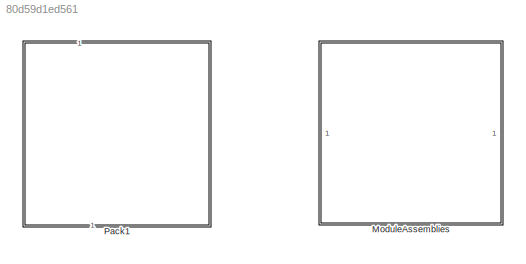
MODEL slx_80d59d1ed561
KIND library
CONFIG AbsTol = auto
CONFIG EnableMultiTasking = off
CONFIG FixedStep = auto
CONFIG MaxStep = auto
CONFIG MinStep = auto
CONFIG RelTol = 1e-3
CONFIG SampleTimeConstraint = Unconstrained
CONFIG SolverName = VariableStepAuto
CONFIG StartTime = 0.0
CONFIG StopTime = 10.0
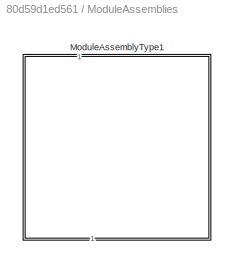
BLOCK [SubSystem] ModuleAssemblies
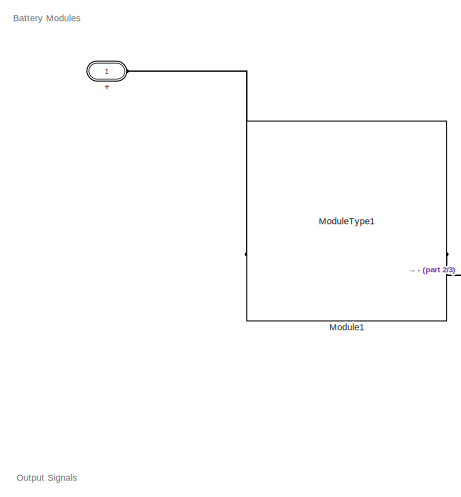
[diagram: ModuleAssemblies/ModuleAssemblyType1 - part 1/3, middle left region]
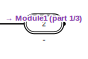
[diagram: ModuleAssemblies/ModuleAssemblyType1 - part 2/3, top right region]
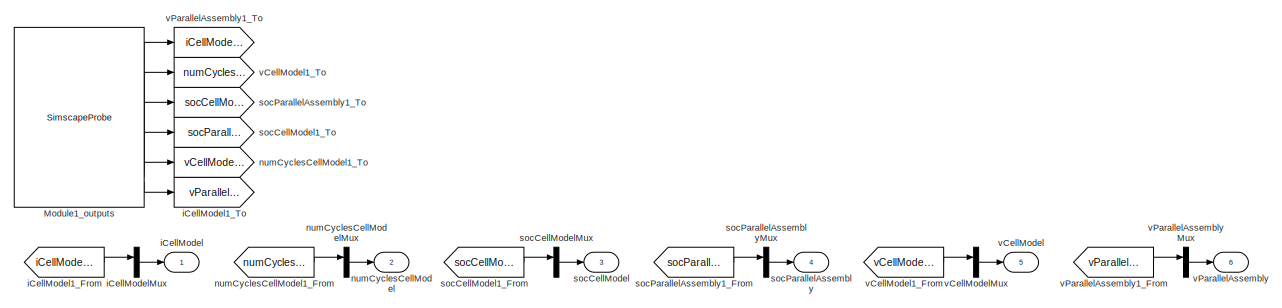
[diagram: ModuleAssemblies/ModuleAssemblyType1 - part 3/3, bottom center region]
BLOCK [SubSystem] ModuleAssemblies/ModuleAssemblyType1
  CopyFcn = battery_builder_rtmsupport('copyfcn',gcbh);
  LoadFcn = battery_builder_rtmsupport('loadfcn',gcbh);
  PortSchema = {"entries":[{"content":{"sides":[{"content":{"connectorIds":["LConn1"]},"type":"ConnectorPlacement.EquallySpacedRectSide","uuid":"3098837b-001c-4476-8059-67268a994f9c"},{"content":{"connectorIds":["RConn1"],"side":"RIGHT"},"type":"ConnectorPlacement.EquallySpacedRectSide","uuid":"e1bc134a-be48-4b5f-af0c-70c1f18160ff"},{"content":{"connectorIds":[],"side":"TOP"},"type":"ConnectorPlacement.EquallySp...<+430ch>  <repeated x4 — deduplicated; at blocks: ModuleAssemblyType1, Pack1, ModuleAssembly1, ModuleAssembly2>
  PreCopyFcn = battery_builder_rtmsupport('precopyfcn',gcbh);
  PreDeleteFcn = battery_builder_rtmsupport('predeletefcn',gcbh);
BLOCK [PMIOPort] ModuleAssemblies/ModuleAssemblyType1/+
  Side = Left
BLOCK [PMIOPort] ModuleAssemblies/ModuleAssemblyType1/-
  Port = 2
  Side = Right
BLOCK [Reference] ModuleAssemblies/ModuleAssemblyType1/Module1  REF=GD_Batterymodel_lib/Modules/ModuleType1
  SourceBlock = GD_Batterymodel_lib/Modules/ModuleType1
  SourceType = ModuleType1
BLOCK [SimscapeProbe] ModuleAssemblies/ModuleAssemblyType1/Module1_outputs
  BoundBlock = 3
  Variables = {iCellModel, numCyclesCellModel, socCellModel, socParallelAssembly, vCellModel, vParallelAssembly}
BLOCK [Outport] ModuleAssemblies/ModuleAssemblyType1/iCellModel
BLOCK [From] ModuleAssemblies/ModuleAssemblyType1/iCellModel1_From
  GotoTag = iCellModel1
BLOCK [Goto] ModuleAssemblies/ModuleAssemblyType1/iCellModel1_To
  GotoTag = vParallelAssembly1
BLOCK [Mux] ModuleAssemblies/ModuleAssemblyType1/iCellModelMux
  DisplayOption = bar
  Inputs = 1
BLOCK [Outport] ModuleAssemblies/ModuleAssemblyType1/numCyclesCellModel
  Port = 2
BLOCK [From] ModuleAssemblies/ModuleAssemblyType1/numCyclesCellModel1_From
  GotoTag = numCyclesCellModel1
BLOCK [Goto] ModuleAssemblies/ModuleAssemblyType1/numCyclesCellModel1_To
  GotoTag = vCellModel1
BLOCK [Mux] ModuleAssemblies/ModuleAssemblyType1/numCyclesCellModelMux
  DisplayOption = bar
  Inputs = 1
BLOCK [Outport] ModuleAssemblies/ModuleAssemblyType1/socCellModel
  Port = 3
BLOCK [From] ModuleAssemblies/ModuleAssemblyType1/socCellModel1_From
  GotoTag = socCellModel1
BLOCK [Goto] ModuleAssemblies/ModuleAssemblyType1/socCellModel1_To
  GotoTag = socParallelAssembly1
BLOCK [Mux] ModuleAssemblies/ModuleAssemblyType1/socCellModelMux
  DisplayOption = bar
  Inputs = 1
BLOCK [Outport] ModuleAssemblies/ModuleAssemblyType1/socParallelAssembly
  Port = 4
BLOCK [From] ModuleAssemblies/ModuleAssemblyType1/socParallelAssembly1_From
  GotoTag = socParallelAssembly1
BLOCK [Goto] ModuleAssemblies/ModuleAssemblyType1/socParallelAssembly1_To
  GotoTag = socCellModel1
BLOCK [Mux] ModuleAssemblies/ModuleAssemblyType1/socParallelAssemblyMux
  DisplayOption = bar
  Inputs = 1
BLOCK [Outport] ModuleAssemblies/ModuleAssemblyType1/vCellModel
  Port = 5
BLOCK [From] ModuleAssemblies/ModuleAssemblyType1/vCellModel1_From
  GotoTag = vCellModel1
BLOCK [Goto] ModuleAssemblies/ModuleAssemblyType1/vCellModel1_To
  GotoTag = numCyclesCellModel1
BLOCK [Mux] ModuleAssemblies/ModuleAssemblyType1/vCellModelMux
  DisplayOption = bar
  Inputs = 1
BLOCK [Outport] ModuleAssemblies/ModuleAssemblyType1/vParallelAssembly
  Port = 6
BLOCK [From] ModuleAssemblies/ModuleAssemblyType1/vParallelAssembly1_From
  GotoTag = vParallelAssembly1
BLOCK [Goto] ModuleAssemblies/ModuleAssemblyType1/vParallelAssembly1_To
  GotoTag = iCellModel1
BLOCK [Mux] ModuleAssemblies/ModuleAssemblyType1/vParallelAssemblyMux
  DisplayOption = bar
  Inputs = 1
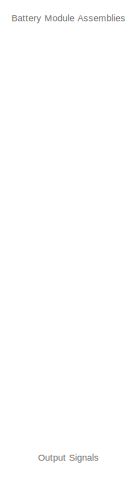
[diagram: Pack1 - part 1/4, left side, full height]
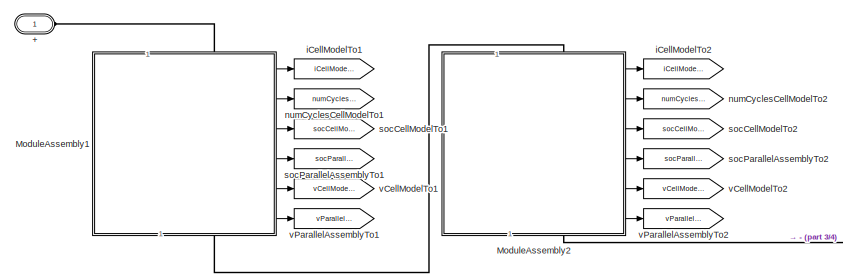
[diagram: Pack1 - part 2/4, middle left region]
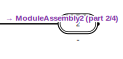
[diagram: Pack1 - part 3/4, top right region]
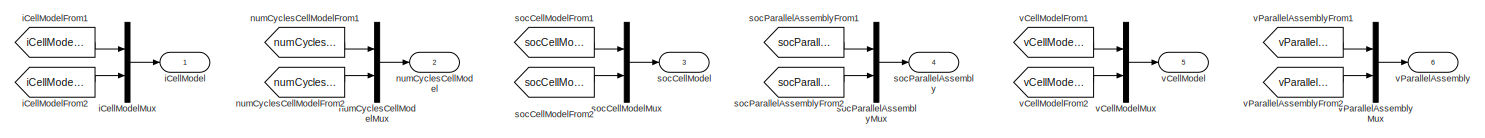
[diagram: Pack1 - part 4/4, bottom center region]
BLOCK [SubSystem] Pack1
  CopyFcn = battery_builder_rtmsupport('copyfcn',gcbh);
  LoadFcn = battery_builder_rtmsupport('loadfcn',gcbh);
  PreCopyFcn = battery_builder_rtmsupport('precopyfcn',gcbh);
  PreDeleteFcn = battery_builder_rtmsupport('predeletefcn',gcbh);
BLOCK [PMIOPort] Pack1/+
  Side = Left
BLOCK [PMIOPort] Pack1/-
  Port = 2
  Side = Right
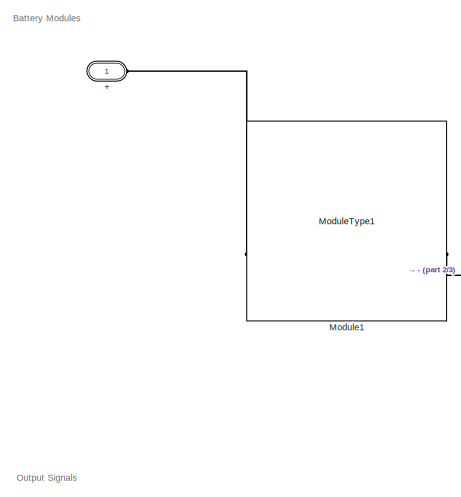
[diagram: Pack1/ModuleAssembly1 - part 1/3, middle left region]
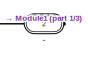
[diagram: Pack1/ModuleAssembly1 - part 2/3, top right region]
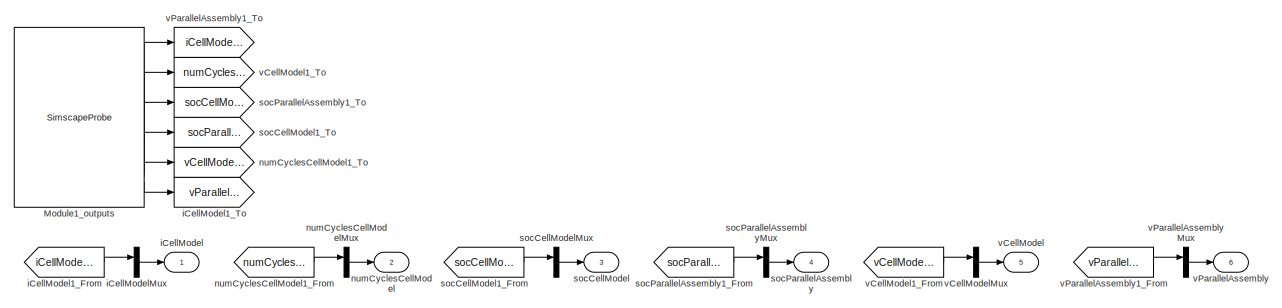
[diagram: Pack1/ModuleAssembly1 - part 3/3, bottom center region]
BLOCK [SubSystem] Pack1/ModuleAssembly1
  CopyFcn = battery_builder_rtmsupport('copyfcn',gcbh);
  LoadFcn = battery_builder_rtmsupport('loadfcn',gcbh);
  PreCopyFcn = battery_builder_rtmsupport('precopyfcn',gcbh);
  PreDeleteFcn = battery_builder_rtmsupport('predeletefcn',gcbh);
BLOCK [PMIOPort] Pack1/ModuleAssembly1/+
  Side = Left
BLOCK [PMIOPort] Pack1/ModuleAssembly1/-
  Port = 2
  Side = Right
BLOCK [Reference] Pack1/ModuleAssembly1/Module1  REF=GD_Batterymodel_lib/Modules/ModuleType1
  SourceBlock = GD_Batterymodel_lib/Modules/ModuleType1
  SourceType = ModuleType1
BLOCK [SimscapeProbe] Pack1/ModuleAssembly1/Module1_outputs
  BoundBlock = 35
  Variables = {iCellModel, numCyclesCellModel, socCellModel, socParallelAssembly, vCellModel, vParallelAssembly}
BLOCK [Outport] Pack1/ModuleAssembly1/iCellModel
BLOCK [From] Pack1/ModuleAssembly1/iCellModel1_From
  GotoTag = iCellModel1
BLOCK [Goto] Pack1/ModuleAssembly1/iCellModel1_To
  GotoTag = vParallelAssembly1
BLOCK [Mux] Pack1/ModuleAssembly1/iCellModelMux
  DisplayOption = bar
  Inputs = 1
BLOCK [Outport] Pack1/ModuleAssembly1/numCyclesCellModel
  Port = 2
BLOCK [From] Pack1/ModuleAssembly1/numCyclesCellModel1_From
  GotoTag = numCyclesCellModel1
BLOCK [Goto] Pack1/ModuleAssembly1/numCyclesCellModel1_To
  GotoTag = vCellModel1
BLOCK [Mux] Pack1/ModuleAssembly1/numCyclesCellModelMux
  DisplayOption = bar
  Inputs = 1
BLOCK [Outport] Pack1/ModuleAssembly1/socCellModel
  Port = 3
BLOCK [From] Pack1/ModuleAssembly1/socCellModel1_From
  GotoTag = socCellModel1
BLOCK [Goto] Pack1/ModuleAssembly1/socCellModel1_To
  GotoTag = socParallelAssembly1
BLOCK [Mux] Pack1/ModuleAssembly1/socCellModelMux
  DisplayOption = bar
  Inputs = 1
BLOCK [Outport] Pack1/ModuleAssembly1/socParallelAssembly
  Port = 4
BLOCK [From] Pack1/ModuleAssembly1/socParallelAssembly1_From
  GotoTag = socParallelAssembly1
BLOCK [Goto] Pack1/ModuleAssembly1/socParallelAssembly1_To
  GotoTag = socCellModel1
BLOCK [Mux] Pack1/ModuleAssembly1/socParallelAssemblyMux
  DisplayOption = bar
  Inputs = 1
BLOCK [Outport] Pack1/ModuleAssembly1/vCellModel
  Port = 5
BLOCK [From] Pack1/ModuleAssembly1/vCellModel1_From
  GotoTag = vCellModel1
BLOCK [Goto] Pack1/ModuleAssembly1/vCellModel1_To
  GotoTag = numCyclesCellModel1
BLOCK [Mux] Pack1/ModuleAssembly1/vCellModelMux
  DisplayOption = bar
  Inputs = 1
BLOCK [Outport] Pack1/ModuleAssembly1/vParallelAssembly
  Port = 6
BLOCK [From] Pack1/ModuleAssembly1/vParallelAssembly1_From
  GotoTag = vParallelAssembly1
BLOCK [Goto] Pack1/ModuleAssembly1/vParallelAssembly1_To
  GotoTag = iCellModel1
BLOCK [Mux] Pack1/ModuleAssembly1/vParallelAssemblyMux
  DisplayOption = bar
  Inputs = 1
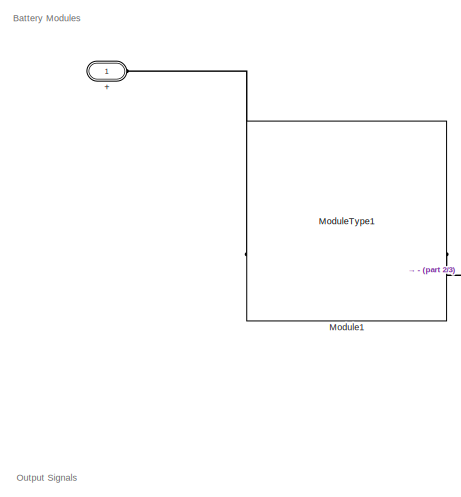
[diagram: Pack1/ModuleAssembly2 - part 1/3, middle left region]
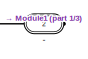
[diagram: Pack1/ModuleAssembly2 - part 2/3, top right region]
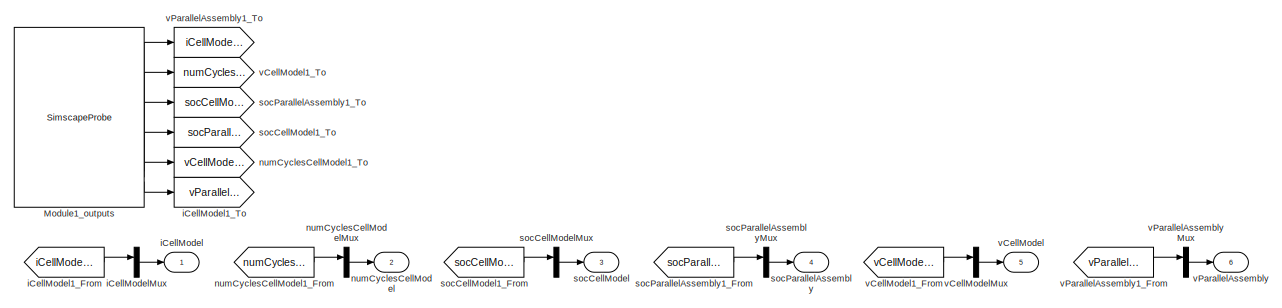
[diagram: Pack1/ModuleAssembly2 - part 3/3, bottom center region]
BLOCK [SubSystem] Pack1/ModuleAssembly2
  CopyFcn = battery_builder_rtmsupport('copyfcn',gcbh);
  LoadFcn = battery_builder_rtmsupport('loadfcn',gcbh);
  PreCopyFcn = battery_builder_rtmsupport('precopyfcn',gcbh);
  PreDeleteFcn = battery_builder_rtmsupport('predeletefcn',gcbh);
BLOCK [PMIOPort] Pack1/ModuleAssembly2/+
  Side = Left
BLOCK [PMIOPort] Pack1/ModuleAssembly2/-
  Port = 2
  Side = Right
BLOCK [Reference] Pack1/ModuleAssembly2/Module1  REF=GD_Batterymodel_lib/Modules/ModuleType1
  SourceBlock = GD_Batterymodel_lib/Modules/ModuleType1
  SourceType = ModuleType1
BLOCK [SimscapeProbe] Pack1/ModuleAssembly2/Module1_outputs
  BoundBlock = 66
  Variables = {iCellModel, numCyclesCellModel, socCellModel, socParallelAssembly, vCellModel, vParallelAssembly}
BLOCK [Outport] Pack1/ModuleAssembly2/iCellModel
BLOCK [From] Pack1/ModuleAssembly2/iCellModel1_From
  GotoTag = iCellModel1
BLOCK [Goto] Pack1/ModuleAssembly2/iCellModel1_To
  GotoTag = vParallelAssembly1
BLOCK [Mux] Pack1/ModuleAssembly2/iCellModelMux
  DisplayOption = bar
  Inputs = 1
BLOCK [Outport] Pack1/ModuleAssembly2/numCyclesCellModel
  Port = 2
BLOCK [From] Pack1/ModuleAssembly2/numCyclesCellModel1_From
  GotoTag = numCyclesCellModel1
BLOCK [Goto] Pack1/ModuleAssembly2/numCyclesCellModel1_To
  GotoTag = vCellModel1
BLOCK [Mux] Pack1/ModuleAssembly2/numCyclesCellModelMux
  DisplayOption = bar
  Inputs = 1
BLOCK [Outport] Pack1/ModuleAssembly2/socCellModel
  Port = 3
BLOCK [From] Pack1/ModuleAssembly2/socCellModel1_From
  GotoTag = socCellModel1
BLOCK [Goto] Pack1/ModuleAssembly2/socCellModel1_To
  GotoTag = socParallelAssembly1
BLOCK [Mux] Pack1/ModuleAssembly2/socCellModelMux
  DisplayOption = bar
  Inputs = 1
BLOCK [Outport] Pack1/ModuleAssembly2/socParallelAssembly
  Port = 4
BLOCK [From] Pack1/ModuleAssembly2/socParallelAssembly1_From
  GotoTag = socParallelAssembly1
BLOCK [Goto] Pack1/ModuleAssembly2/socParallelAssembly1_To
  GotoTag = socCellModel1
BLOCK [Mux] Pack1/ModuleAssembly2/socParallelAssemblyMux
  DisplayOption = bar
  Inputs = 1
BLOCK [Outport] Pack1/ModuleAssembly2/vCellModel
  Port = 5
BLOCK [From] Pack1/ModuleAssembly2/vCellModel1_From
  GotoTag = vCellModel1
BLOCK [Goto] Pack1/ModuleAssembly2/vCellModel1_To
  GotoTag = numCyclesCellModel1
BLOCK [Mux] Pack1/ModuleAssembly2/vCellModelMux
  DisplayOption = bar
  Inputs = 1
BLOCK [Outport] Pack1/ModuleAssembly2/vParallelAssembly
  Port = 6
BLOCK [From] Pack1/ModuleAssembly2/vParallelAssembly1_From
  GotoTag = vParallelAssembly1
BLOCK [Goto] Pack1/ModuleAssembly2/vParallelAssembly1_To
  GotoTag = iCellModel1
BLOCK [Mux] Pack1/ModuleAssembly2/vParallelAssemblyMux
  DisplayOption = bar
  Inputs = 1
BLOCK [Outport] Pack1/iCellModel
BLOCK [From] Pack1/iCellModelFrom1
  GotoTag = iCellModel1
BLOCK [From] Pack1/iCellModelFrom2
  GotoTag = iCellModel2
BLOCK [Mux] Pack1/iCellModelMux
  DisplayOption = bar
  Inputs = 2
BLOCK [Goto] Pack1/iCellModelTo1
  GotoTag = iCellModel1
BLOCK [Goto] Pack1/iCellModelTo2
  GotoTag = iCellModel2
BLOCK [Outport] Pack1/numCyclesCellModel
  Port = 2
BLOCK [From] Pack1/numCyclesCellModelFrom1
  GotoTag = numCyclesCellModel1
BLOCK [From] Pack1/numCyclesCellModelFrom2
  GotoTag = numCyclesCellModel2
BLOCK [Mux] Pack1/numCyclesCellModelMux
  DisplayOption = bar
  Inputs = 2
BLOCK [Goto] Pack1/numCyclesCellModelTo1
  GotoTag = numCyclesCellModel1
BLOCK [Goto] Pack1/numCyclesCellModelTo2
  GotoTag = numCyclesCellModel2
BLOCK [Outport] Pack1/socCellModel
  Port = 3
BLOCK [From] Pack1/socCellModelFrom1
  GotoTag = socCellModel1
BLOCK [From] Pack1/socCellModelFrom2
  GotoTag = socCellModel2
BLOCK [Mux] Pack1/socCellModelMux
  DisplayOption = bar
  Inputs = 2
BLOCK [Goto] Pack1/socCellModelTo1
  GotoTag = socCellModel1
BLOCK [Goto] Pack1/socCellModelTo2
  GotoTag = socCellModel2
BLOCK [Outport] Pack1/socParallelAssembly
  Port = 4
BLOCK [From] Pack1/socParallelAssemblyFrom1
  GotoTag = socParallelAssembly1
BLOCK [From] Pack1/socParallelAssemblyFrom2
  GotoTag = socParallelAssembly2
BLOCK [Mux] Pack1/socParallelAssemblyMux
  DisplayOption = bar
  Inputs = 2
BLOCK [Goto] Pack1/socParallelAssemblyTo1
  GotoTag = socParallelAssembly1
BLOCK [Goto] Pack1/socParallelAssemblyTo2
  GotoTag = socParallelAssembly2
BLOCK [Outport] Pack1/vCellModel
  Port = 5
BLOCK [From] Pack1/vCellModelFrom1
  GotoTag = vCellModel1
BLOCK [From] Pack1/vCellModelFrom2
  GotoTag = vCellModel2
BLOCK [Mux] Pack1/vCellModelMux
  DisplayOption = bar
  Inputs = 2
BLOCK [Goto] Pack1/vCellModelTo1
  GotoTag = vCellModel1
BLOCK [Goto] Pack1/vCellModelTo2
  GotoTag = vCellModel2
BLOCK [Outport] Pack1/vParallelAssembly
  Port = 6
BLOCK [From] Pack1/vParallelAssemblyFrom1
  GotoTag = vParallelAssembly1
BLOCK [From] Pack1/vParallelAssemblyFrom2
  GotoTag = vParallelAssembly2
BLOCK [Mux] Pack1/vParallelAssemblyMux
  DisplayOption = bar
  Inputs = 2
BLOCK [Goto] Pack1/vParallelAssemblyTo1
  GotoTag = vParallelAssembly1
BLOCK [Goto] Pack1/vParallelAssemblyTo2
  GotoTag = vParallelAssembly2
ANNOTATION ModuleAssemblies/ModuleAssemblyType1: Battery Modules
ANNOTATION ModuleAssemblies/ModuleAssemblyType1: Output Signals
ANNOTATION Pack1: Battery Module Assemblies
ANNOTATION Pack1: Output Signals
ANNOTATION Pack1/ModuleAssembly1: Battery Modules
ANNOTATION Pack1/ModuleAssembly1: Output Signals
ANNOTATION Pack1/ModuleAssembly2: Battery Modules
ANNOTATION Pack1/ModuleAssembly2: Output Signals
LINE ModuleAssemblies/ModuleAssemblyType1/Module1_outputs:1 -> ModuleAssemblies/ModuleAssemblyType1/vParallelAssembly1_To:1
LINE ModuleAssemblies/ModuleAssemblyType1/Module1_outputs:2 -> ModuleAssemblies/ModuleAssemblyType1/vCellModel1_To:1
LINE ModuleAssemblies/ModuleAssemblyType1/Module1_outputs:3 -> ModuleAssemblies/ModuleAssemblyType1/socParallelAssembly1_To:1
LINE ModuleAssemblies/ModuleAssemblyType1/Module1_outputs:4 -> ModuleAssemblies/ModuleAssemblyType1/socCellModel1_To:1
LINE ModuleAssemblies/ModuleAssemblyType1/Module1_outputs:5 -> ModuleAssemblies/ModuleAssemblyType1/numCyclesCellModel1_To:1
LINE ModuleAssemblies/ModuleAssemblyType1/Module1_outputs:6 -> ModuleAssemblies/ModuleAssemblyType1/iCellModel1_To:1
LINE ModuleAssemblies/ModuleAssemblyType1/iCellModel1_From:1 -> ModuleAssemblies/ModuleAssemblyType1/iCellModelMux:1
LINE ModuleAssemblies/ModuleAssemblyType1/iCellModelMux:1 -> ModuleAssemblies/ModuleAssemblyType1/iCellModel:1
LINE ModuleAssemblies/ModuleAssemblyType1/numCyclesCellModel1_From:1 -> ModuleAssemblies/ModuleAssemblyType1/numCyclesCellModelMux:1
LINE ModuleAssemblies/ModuleAssemblyType1/numCyclesCellModelMux:1 -> ModuleAssemblies/ModuleAssemblyType1/numCyclesCellModel:1
LINE ModuleAssemblies/ModuleAssemblyType1/socCellModel1_From:1 -> ModuleAssemblies/ModuleAssemblyType1/socCellModelMux:1
LINE ModuleAssemblies/ModuleAssemblyType1/socCellModelMux:1 -> ModuleAssemblies/ModuleAssemblyType1/socCellModel:1
LINE ModuleAssemblies/ModuleAssemblyType1/socParallelAssembly1_From:1 -> ModuleAssemblies/ModuleAssemblyType1/socParallelAssemblyMux:1
LINE ModuleAssemblies/ModuleAssemblyType1/socParallelAssemblyMux:1 -> ModuleAssemblies/ModuleAssemblyType1/socParallelAssembly:1
LINE ModuleAssemblies/ModuleAssemblyType1/vCellModel1_From:1 -> ModuleAssemblies/ModuleAssemblyType1/vCellModelMux:1
LINE ModuleAssemblies/ModuleAssemblyType1/vCellModelMux:1 -> ModuleAssemblies/ModuleAssemblyType1/vCellModel:1
LINE ModuleAssemblies/ModuleAssemblyType1/vParallelAssembly1_From:1 -> ModuleAssemblies/ModuleAssemblyType1/vParallelAssemblyMux:1
LINE ModuleAssemblies/ModuleAssemblyType1/vParallelAssemblyMux:1 -> ModuleAssemblies/ModuleAssemblyType1/vParallelAssembly:1
LINE Pack1/ModuleAssembly1/Module1_outputs:1 -> Pack1/ModuleAssembly1/vParallelAssembly1_To:1
LINE Pack1/ModuleAssembly1/Module1_outputs:2 -> Pack1/ModuleAssembly1/vCellModel1_To:1
LINE Pack1/ModuleAssembly1/Module1_outputs:3 -> Pack1/ModuleAssembly1/socParallelAssembly1_To:1
LINE Pack1/ModuleAssembly1/Module1_outputs:4 -> Pack1/ModuleAssembly1/socCellModel1_To:1
LINE Pack1/ModuleAssembly1/Module1_outputs:5 -> Pack1/ModuleAssembly1/numCyclesCellModel1_To:1
LINE Pack1/ModuleAssembly1/Module1_outputs:6 -> Pack1/ModuleAssembly1/iCellModel1_To:1
LINE Pack1/ModuleAssembly1/iCellModel1_From:1 -> Pack1/ModuleAssembly1/iCellModelMux:1
LINE Pack1/ModuleAssembly1/iCellModelMux:1 -> Pack1/ModuleAssembly1/iCellModel:1
LINE Pack1/ModuleAssembly1/numCyclesCellModel1_From:1 -> Pack1/ModuleAssembly1/numCyclesCellModelMux:1
LINE Pack1/ModuleAssembly1/numCyclesCellModelMux:1 -> Pack1/ModuleAssembly1/numCyclesCellModel:1
LINE Pack1/ModuleAssembly1/socCellModel1_From:1 -> Pack1/ModuleAssembly1/socCellModelMux:1
LINE Pack1/ModuleAssembly1/socCellModelMux:1 -> Pack1/ModuleAssembly1/socCellModel:1
LINE Pack1/ModuleAssembly1/socParallelAssembly1_From:1 -> Pack1/ModuleAssembly1/socParallelAssemblyMux:1
LINE Pack1/ModuleAssembly1/socParallelAssemblyMux:1 -> Pack1/ModuleAssembly1/socParallelAssembly:1
LINE Pack1/ModuleAssembly1/vCellModel1_From:1 -> Pack1/ModuleAssembly1/vCellModelMux:1
LINE Pack1/ModuleAssembly1/vCellModelMux:1 -> Pack1/ModuleAssembly1/vCellModel:1
LINE Pack1/ModuleAssembly1/vParallelAssembly1_From:1 -> Pack1/ModuleAssembly1/vParallelAssemblyMux:1
LINE Pack1/ModuleAssembly1/vParallelAssemblyMux:1 -> Pack1/ModuleAssembly1/vParallelAssembly:1
LINE Pack1/ModuleAssembly1:1 -> Pack1/iCellModelTo1:1
LINE Pack1/ModuleAssembly1:2 -> Pack1/numCyclesCellModelTo1:1
LINE Pack1/ModuleAssembly1:3 -> Pack1/socCellModelTo1:1
LINE Pack1/ModuleAssembly1:4 -> Pack1/socParallelAssemblyTo1:1
LINE Pack1/ModuleAssembly1:5 -> Pack1/vCellModelTo1:1
LINE Pack1/ModuleAssembly1:6 -> Pack1/vParallelAssemblyTo1:1
LINE Pack1/ModuleAssembly2/Module1_outputs:1 -> Pack1/ModuleAssembly2/vParallelAssembly1_To:1
LINE Pack1/ModuleAssembly2/Module1_outputs:2 -> Pack1/ModuleAssembly2/vCellModel1_To:1
LINE Pack1/ModuleAssembly2/Module1_outputs:3 -> Pack1/ModuleAssembly2/socParallelAssembly1_To:1
LINE Pack1/ModuleAssembly2/Module1_outputs:4 -> Pack1/ModuleAssembly2/socCellModel1_To:1
LINE Pack1/ModuleAssembly2/Module1_outputs:5 -> Pack1/ModuleAssembly2/numCyclesCellModel1_To:1
LINE Pack1/ModuleAssembly2/Module1_outputs:6 -> Pack1/ModuleAssembly2/iCellModel1_To:1
LINE Pack1/ModuleAssembly2/iCellModel1_From:1 -> Pack1/ModuleAssembly2/iCellModelMux:1
LINE Pack1/ModuleAssembly2/iCellModelMux:1 -> Pack1/ModuleAssembly2/iCellModel:1
LINE Pack1/ModuleAssembly2/numCyclesCellModel1_From:1 -> Pack1/ModuleAssembly2/numCyclesCellModelMux:1
LINE Pack1/ModuleAssembly2/numCyclesCellModelMux:1 -> Pack1/ModuleAssembly2/numCyclesCellModel:1
LINE Pack1/ModuleAssembly2/socCellModel1_From:1 -> Pack1/ModuleAssembly2/socCellModelMux:1
LINE Pack1/ModuleAssembly2/socCellModelMux:1 -> Pack1/ModuleAssembly2/socCellModel:1
LINE Pack1/ModuleAssembly2/socParallelAssembly1_From:1 -> Pack1/ModuleAssembly2/socParallelAssemblyMux:1
LINE Pack1/ModuleAssembly2/socParallelAssemblyMux:1 -> Pack1/ModuleAssembly2/socParallelAssembly:1
LINE Pack1/ModuleAssembly2/vCellModel1_From:1 -> Pack1/ModuleAssembly2/vCellModelMux:1
LINE Pack1/ModuleAssembly2/vCellModelMux:1 -> Pack1/ModuleAssembly2/vCellModel:1
LINE Pack1/ModuleAssembly2/vParallelAssembly1_From:1 -> Pack1/ModuleAssembly2/vParallelAssemblyMux:1
LINE Pack1/ModuleAssembly2/vParallelAssemblyMux:1 -> Pack1/ModuleAssembly2/vParallelAssembly:1
LINE Pack1/ModuleAssembly2:1 -> Pack1/iCellModelTo2:1
LINE Pack1/ModuleAssembly2:2 -> Pack1/numCyclesCellModelTo2:1
LINE Pack1/ModuleAssembly2:3 -> Pack1/socCellModelTo2:1
LINE Pack1/ModuleAssembly2:4 -> Pack1/socParallelAssemblyTo2:1
LINE Pack1/ModuleAssembly2:5 -> Pack1/vCellModelTo2:1
LINE Pack1/ModuleAssembly2:6 -> Pack1/vParallelAssemblyTo2:1
LINE Pack1/iCellModelFrom1:1 -> Pack1/iCellModelMux:1
LINE Pack1/iCellModelFrom2:1 -> Pack1/iCellModelMux:2
LINE Pack1/iCellModelMux:1 -> Pack1/iCellModel:1
LINE Pack1/numCyclesCellModelFrom1:1 -> Pack1/numCyclesCellModelMux:1
LINE Pack1/numCyclesCellModelFrom2:1 -> Pack1/numCyclesCellModelMux:2
LINE Pack1/numCyclesCellModelMux:1 -> Pack1/numCyclesCellModel:1
LINE Pack1/socCellModelFrom1:1 -> Pack1/socCellModelMux:1
LINE Pack1/socCellModelFrom2:1 -> Pack1/socCellModelMux:2
LINE Pack1/socCellModelMux:1 -> Pack1/socCellModel:1
LINE Pack1/socParallelAssemblyFrom1:1 -> Pack1/socParallelAssemblyMux:1
LINE Pack1/socParallelAssemblyFrom2:1 -> Pack1/socParallelAssemblyMux:2
LINE Pack1/socParallelAssemblyMux:1 -> Pack1/socParallelAssembly:1
LINE Pack1/vCellModelFrom1:1 -> Pack1/vCellModelMux:1
LINE Pack1/vCellModelFrom2:1 -> Pack1/vCellModelMux:2
LINE Pack1/vCellModelMux:1 -> Pack1/vCellModel:1
LINE Pack1/vParallelAssemblyFrom1:1 -> Pack1/vParallelAssemblyMux:1
LINE Pack1/vParallelAssemblyFrom2:1 -> Pack1/vParallelAssemblyMux:2
LINE Pack1/vParallelAssemblyMux:1 -> Pack1/vParallelAssembly:1
PLINE ModuleAssemblies/ModuleAssemblyType1/+:RConn1 -- ModuleAssemblies/ModuleAssemblyType1/Module1:LConn1
PLINE ModuleAssemblies/ModuleAssemblyType1/-:RConn1 -- ModuleAssemblies/ModuleAssemblyType1/Module1:RConn1
PLINE Pack1/+:RConn1 -- Pack1/ModuleAssembly1:LConn1
PLINE Pack1/-:RConn1 -- Pack1/ModuleAssembly2:RConn1
PLINE Pack1/ModuleAssembly1/+:RConn1 -- Pack1/ModuleAssembly1/Module1:LConn1
PLINE Pack1/ModuleAssembly1/-:RConn1 -- Pack1/ModuleAssembly1/Module1:RConn1
PLINE Pack1/ModuleAssembly1:RConn1 -- Pack1/ModuleAssembly2:LConn1
PLINE Pack1/ModuleAssembly2/+:RConn1 -- Pack1/ModuleAssembly2/Module1:LConn1
PLINE Pack1/ModuleAssembly2/-:RConn1 -- Pack1/ModuleAssembly2/Module1:RConn1
